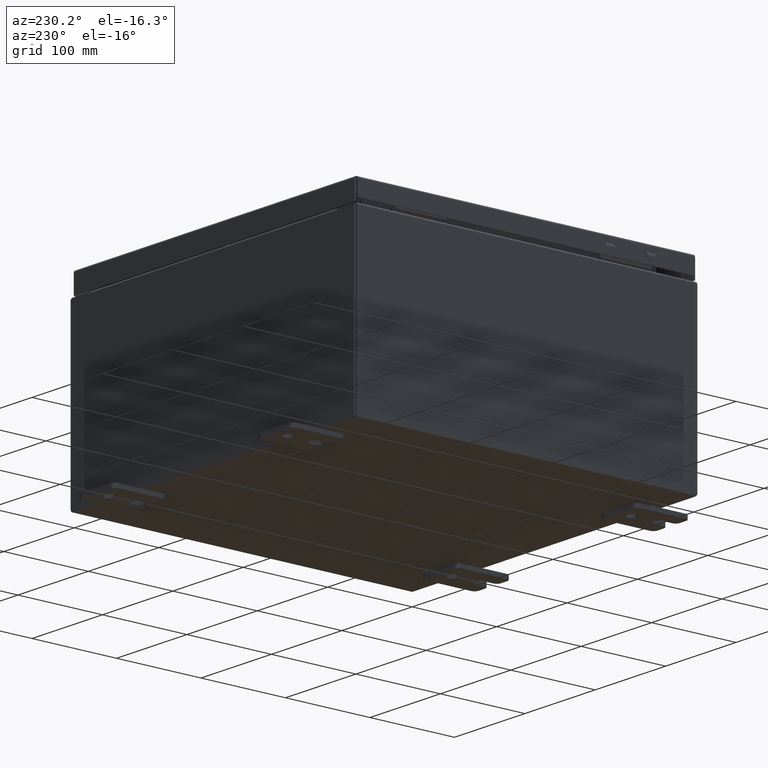
[diagram: clean part render]
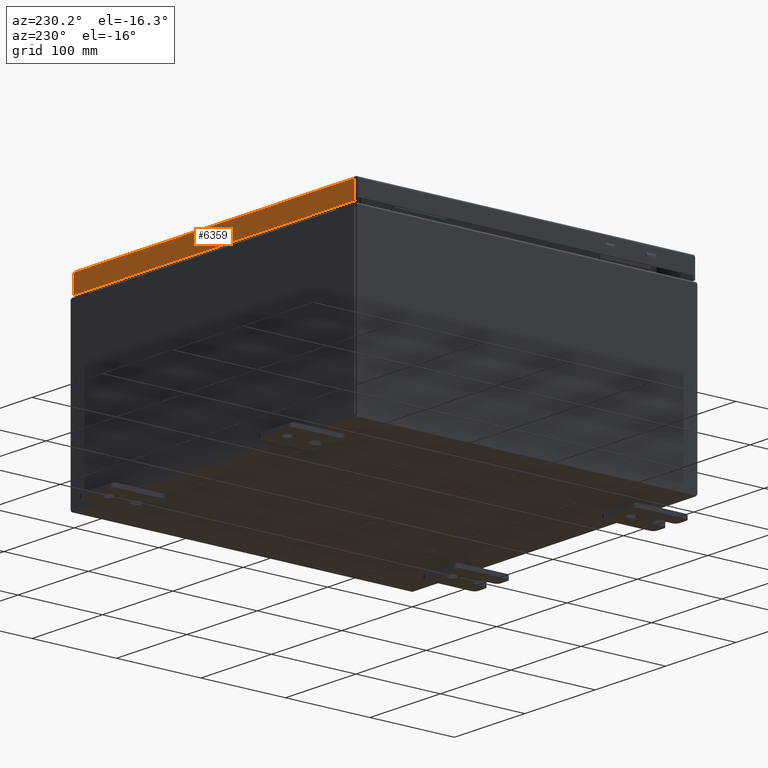
[diagram: same view with one face highlighted and labeled with its STEP entity id]
A machine part, auxiliary view. The second image highlights one B-rep face of the part: STEP entity #6359.
In plain terms, the highlighted planar face has unit normal (0, -1, -0).
Its self-contained STEP definition (entity closure, byte-faithful):
#164 = CARTESIAN_POINT ( 'NONE',  ( -7.848657864376269400, 7.937500000000000000, -0.08770000000000026400 ) ) ;
#742 = VERTEX_POINT ( 'NONE', #3693 ) ;
#1128 = VECTOR ( 'NONE', #4921, 39.37007874015748100 ) ;
#2664 = DIRECTION ( 'NONE',  ( 4.902651701673304100E-031, -1.000000000000000000, -3.798629886902790100E-015 ) ) ;
#2760 = ORIENTED_EDGE ( 'NONE', *, *, #46980, .F. ) ;
#3637 = VERTEX_POINT ( 'NONE', #164 ) ;
#3693 = CARTESIAN_POINT ( 'NONE',  ( 7.848657864376269400, 7.937500000000000000, -0.08770000000000026400 ) ) ;
#4921 = DIRECTION ( 'NONE',  ( -0.0000000000000000000, 3.798629886902790100E-015, -1.000000000000000000 ) ) ;
#6359 = ADVANCED_FACE ( 'NONE', ( #25737 ), #60436, .F. ) ;
#7309 = CARTESIAN_POINT ( 'NONE',  ( -7.848657864376269400, 7.937500000000003600, -0.9377000000000013100 ) ) ;
#15387 = LINE ( 'NONE', #30834, #25216 ) ;
#18001 = VERTEX_POINT ( 'NONE', #44670 ) ;
#20066 = VECTOR ( 'NONE', #30341, 39.37007874015748100 ) ;
#20669 = LINE ( 'NONE', #31676, #57656 ) ;
#23323 = EDGE_LOOP ( 'NONE', ( #2760, #26332, #51351, #37053 ) ) ;
#25216 = VECTOR ( 'NONE', #40716, 39.37007874015748100 ) ;
#25737 = FACE_OUTER_BOUND ( 'NONE', #23323, .T. ) ;
#26332 = ORIENTED_EDGE ( 'NONE', *, *, #46805, .T. ) ;
#26787 = LINE ( 'NONE', #53050, #1128 ) ;
#30341 = DIRECTION ( 'NONE',  ( 1.000000000000000000, -0.0000000000000000000, 1.290636847400439300E-016 ) ) ;
#30834 = CARTESIAN_POINT ( 'NONE',  ( 7.848657864376269400, 7.937500000000000000, 3.059669752903974500E-014 ) ) ;
#31676 = CARTESIAN_POINT ( 'NONE',  ( -7.937500000000000000, 7.937500000000000000, -0.08770000000000026400 ) ) ;
#36333 = DIRECTION ( 'NONE',  ( 0.0000000000000000000, 3.798629886902790100E-015, -1.000000000000000000 ) ) ;
#37053 = ORIENTED_EDGE ( 'NONE', *, *, #51442, .F. ) ;
#40716 = DIRECTION ( 'NONE',  ( 0.0000000000000000000, 3.798629886902790100E-015, -1.000000000000000000 ) ) ;
#41497 = VERTEX_POINT ( 'NONE', #7309 ) ;
#44418 = EDGE_CURVE ( 'NONE', #41497, #18001, #45745, .T. ) ;
#44670 = CARTESIAN_POINT ( 'NONE',  ( 7.848657864376269400, 7.937500000000003600, -0.9376999999999990900 ) ) ;
#44931 = CARTESIAN_POINT ( 'NONE',  ( -7.937500000000000000, 7.937500000000003600, -0.9377000000000013100 ) ) ;
#45745 = LINE ( 'NONE', #44931, #20066 ) ;
#45892 = CARTESIAN_POINT ( 'NONE',  ( 0.0000000000000000000, 7.937500000000000000, 3.059669752903974500E-014 ) ) ;
#45970 = AXIS2_PLACEMENT_3D ( 'NONE', #45892, #2664, #36333 ) ;
#46263 = DIRECTION ( 'NONE',  ( -1.000000000000000000, -4.902651701673304100E-031, -1.880652595880180800E-045 ) ) ;
#46805 = EDGE_CURVE ( 'NONE', #742, #18001, #15387, .T. ) ;
#46980 = EDGE_CURVE ( 'NONE', #742, #3637, #20669, .T. ) ;
#51351 = ORIENTED_EDGE ( 'NONE', *, *, #44418, .F. ) ;
#51442 = EDGE_CURVE ( 'NONE', #3637, #41497, #26787, .T. ) ;
#53050 = CARTESIAN_POINT ( 'NONE',  ( -7.848657864376269400, 7.937500000000000000, -0.07470000000000015500 ) ) ;
#57656 = VECTOR ( 'NONE', #46263, 39.37007874015748100 ) ;
#60436 = PLANE ( 'NONE',  #45970 ) ;